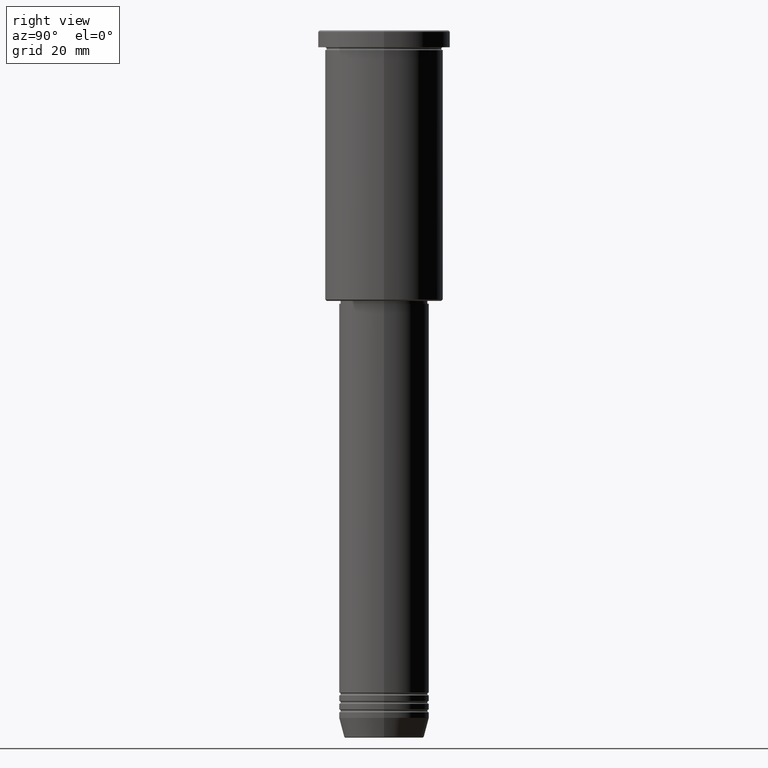
[diagram: clean part render]
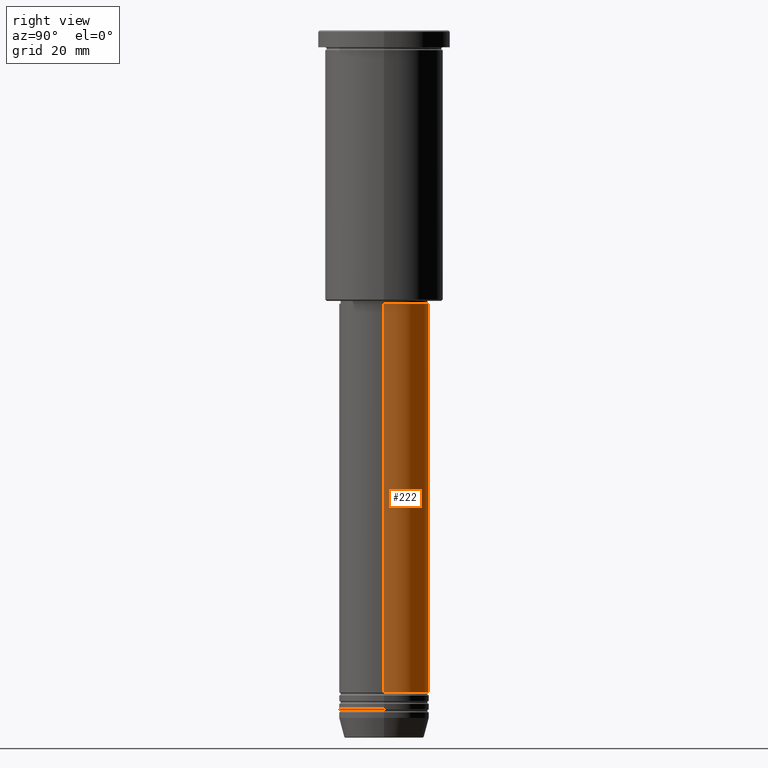
[diagram: same view with one face highlighted and labeled with its STEP entity id]
A machine part, right view. The second image highlights one B-rep face of the part: STEP entity #222.
In plain terms, the highlighted cylindrical surface (partial cylindrical patch) has radius 16 mm, axis along (-0, -0, 1).
Its self-contained STEP definition (entity closure, byte-faithful):
#9 = EDGE_CURVE ( 'NONE', #255, #186, #72, .T. ) ;
#37 = CYLINDRICAL_SURFACE ( 'NONE', #69, 16.00000000000000000 ) ;
#69 = AXIS2_PLACEMENT_3D ( 'NONE', #581, #131, #957 ) ;
#72 = LINE ( 'NONE', #249, #409 ) ;
#78 = CARTESIAN_POINT ( 'NONE',  ( 0.000000000000000000, 0.000000000000000000, -235.0000000000000000 ) ) ;
#127 = CARTESIAN_POINT ( 'NONE',  ( 0.000000000000000000, 0.000000000000000000, -97.00000000000000000 ) ) ;
#130 = CIRCLE ( 'NONE', #790, 16.00000000000000000 ) ;
#131 = DIRECTION ( 'NONE',  ( -0.000000000000000000, -0.000000000000000000, 1.000000000000000000 ) ) ;
#186 = VERTEX_POINT ( 'NONE', #371 ) ;
#194 = LINE ( 'NONE', #926, #206 ) ;
#206 = VECTOR ( 'NONE', #282, 1000.000000000000000 ) ;
#222 = ADVANCED_FACE ( 'NONE', ( #577 ), #37, .T. ) ;
#249 = CARTESIAN_POINT ( 'NONE',  ( 16.00000000000000000, 0.000000000000000000, 0.000000000000000000 ) ) ;
#255 = VERTEX_POINT ( 'NONE', #591 ) ;
#282 = DIRECTION ( 'NONE',  ( -0.000000000000000000, -0.000000000000000000, 1.000000000000000000 ) ) ;
#305 = VERTEX_POINT ( 'NONE', #494 ) ;
#367 = EDGE_CURVE ( 'NONE', #255, #305, #1080, .T. ) ;
#371 = CARTESIAN_POINT ( 'NONE',  ( 16.00000000000000000, 0.000000000000000000, -97.00000000000000000 ) ) ;
#394 = AXIS2_PLACEMENT_3D ( 'NONE', #78, #420, #1076 ) ;
#409 = VECTOR ( 'NONE', #630, 1000.000000000000000 ) ;
#415 = EDGE_LOOP ( 'NONE', ( #1172, #705, #1167, #549 ) ) ;
#420 = DIRECTION ( 'NONE',  ( -0.000000000000000000, -0.000000000000000000, 1.000000000000000000 ) ) ;
#489 = DIRECTION ( 'NONE',  ( 1.000000000000000000, 0.000000000000000000, 0.000000000000000000 ) ) ;
#494 = CARTESIAN_POINT ( 'NONE',  ( -16.00000000000000000, 1.959434878635765131E-15, -235.0000000000000000 ) ) ;
#536 = CARTESIAN_POINT ( 'NONE',  ( -16.00000000000000000, 1.959434878635765131E-15, -97.00000000000000000 ) ) ;
#549 = ORIENTED_EDGE ( 'NONE', *, *, #9, .F. ) ;
#577 = FACE_OUTER_BOUND ( 'NONE', #415, .T. ) ;
#581 = CARTESIAN_POINT ( 'NONE',  ( 0.000000000000000000, 0.000000000000000000, 0.000000000000000000 ) ) ;
#591 = CARTESIAN_POINT ( 'NONE',  ( 16.00000000000000000, 0.000000000000000000, -235.0000000000000000 ) ) ;
#630 = DIRECTION ( 'NONE',  ( -0.000000000000000000, -0.000000000000000000, 1.000000000000000000 ) ) ;
#705 = ORIENTED_EDGE ( 'NONE', *, *, #952, .T. ) ;
#790 = AXIS2_PLACEMENT_3D ( 'NONE', #127, #851, #489 ) ;
#851 = DIRECTION ( 'NONE',  ( -0.000000000000000000, -0.000000000000000000, 1.000000000000000000 ) ) ;
#855 = VERTEX_POINT ( 'NONE', #536 ) ;
#926 = CARTESIAN_POINT ( 'NONE',  ( -16.00000000000000000, 1.959434878635765131E-15, 0.000000000000000000 ) ) ;
#952 = EDGE_CURVE ( 'NONE', #305, #855, #194, .T. ) ;
#957 = DIRECTION ( 'NONE',  ( 1.000000000000000000, 0.000000000000000000, 0.000000000000000000 ) ) ;
#1048 = EDGE_CURVE ( 'NONE', #186, #855, #130, .T. ) ;
#1076 = DIRECTION ( 'NONE',  ( 1.000000000000000000, 0.000000000000000000, 0.000000000000000000 ) ) ;
#1080 = CIRCLE ( 'NONE', #394, 16.00000000000000000 ) ;
#1167 = ORIENTED_EDGE ( 'NONE', *, *, #1048, .F. ) ;
#1172 = ORIENTED_EDGE ( 'NONE', *, *, #367, .T. ) ;